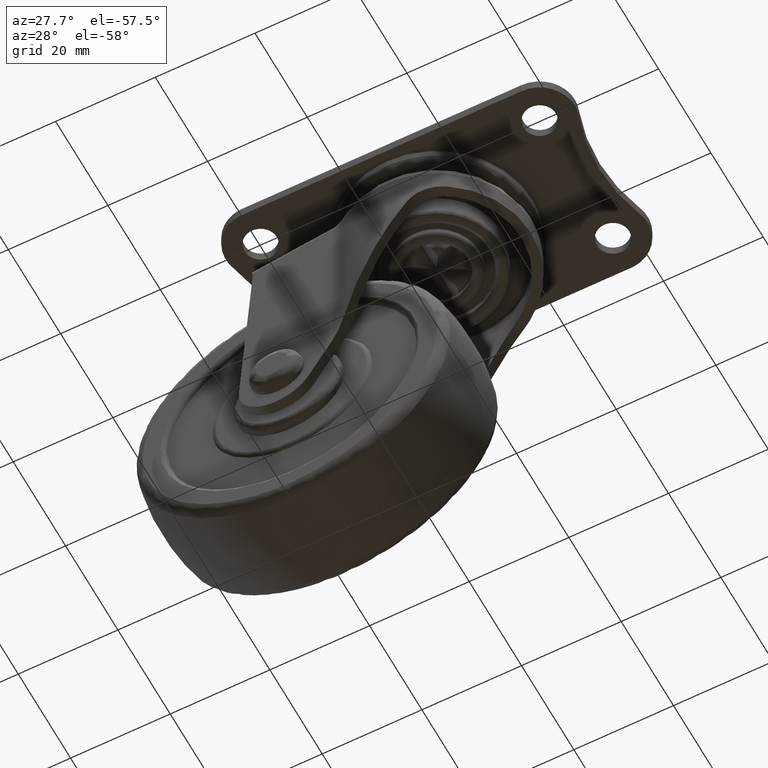
[diagram: clean part render]
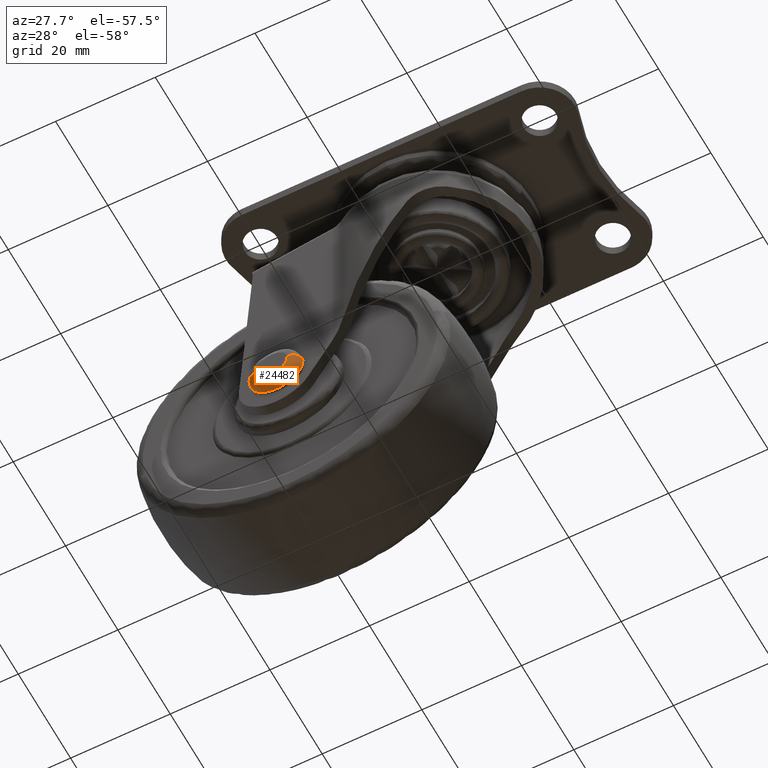
[diagram: same view with one face highlighted and labeled with its STEP entity id]
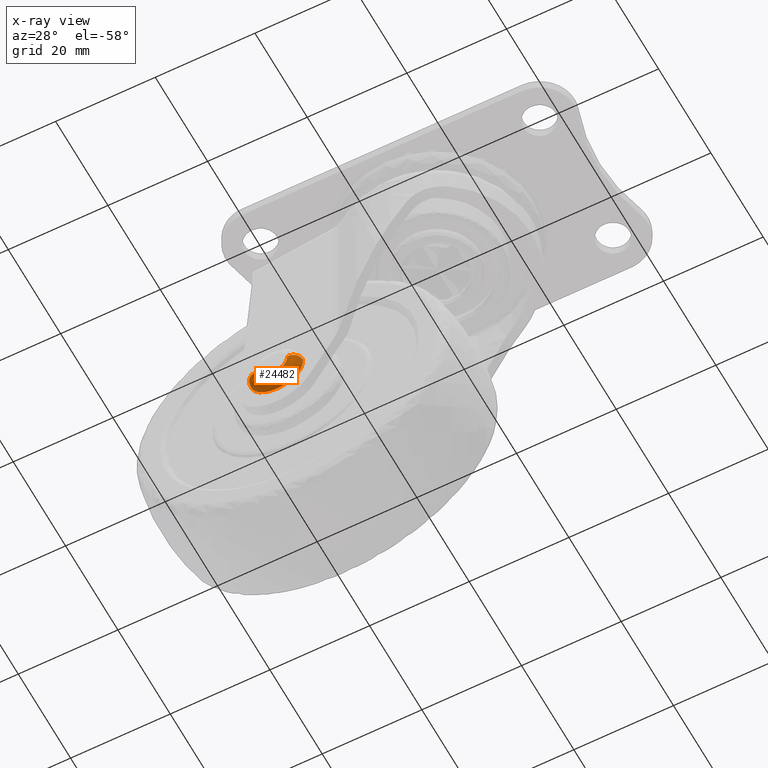
[diagram: x-ray of the same camera — body ghosted, the highlighted face saturated]
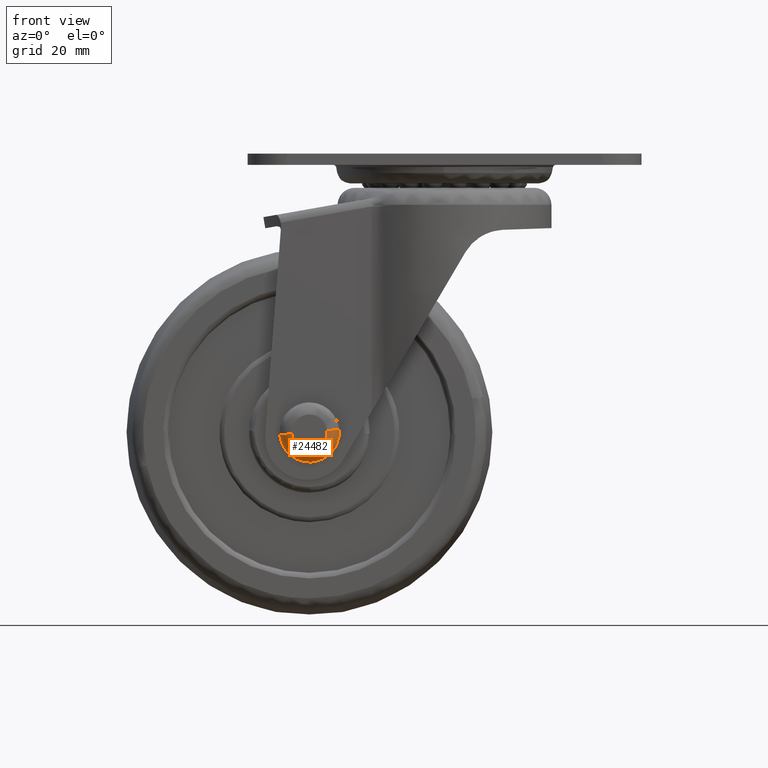
[diagram: same view with one face highlighted and labeled with its STEP entity id]
A machine part, auxiliary view. The second image highlights one B-rep face of the part: STEP entity #24482.
The next image is the same camera in x-ray: the body ghosted, the highlighted face saturated — about 0% of this face is hidden behind the body in this view.
A second angle (front view) of the same face is appended — the face is thin or edge-on in the first view.
In plain terms, the highlighted face is a freeform B-spline surface patch.
Its self-contained STEP definition (entity closure, byte-faithful):
#24238=CARTESIAN_POINT('',(-3.127044846494923,-17.494932000694799,-0.275780910159106));
#24239=VERTEX_POINT('',#24238);
#24257=CARTESIAN_POINT('',(0.0,-17.494931999999999,-3.139182143222075));
#24258=VERTEX_POINT('',#24257);
#24259=CARTESIAN_POINT('',(0.0,-17.494931999999999,-3.139182143222075));
#24260=CARTESIAN_POINT('',(-2.874515237681398,-17.494932000347401,-3.139182143600397));
#24261=CARTESIAN_POINT('',(-3.127044846494923,-17.494932000694796,-0.275780910159107));
#24269=(BOUNDED_CURVE()B_SPLINE_CURVE(2,(#24259,#24260,#24261),.UNSPECIFIED.,.F.,.U.)B_SPLINE_CURVE_WITH_KNOTS((3,3),(0.500000000000000,0.734718454750623),.UNSPECIFIED.)CURVE()GEOMETRIC_REPRESENTATION_ITEM()RATIONAL_B_SPLINE_CURVE((1.0,0.725010225092682,0.966381850493102))REPRESENTATION_ITEM(''));
#24270=EDGE_CURVE('',#24258,#24239,#24269,.T.);
#24272=CARTESIAN_POINT('',(3.127044846494923,-17.494932000694799,0.275780910159096));
#24273=VERTEX_POINT('',#24272);
#24274=CARTESIAN_POINT('',(3.127044846494923,-17.494932000694792,0.275780910159096));
#24275=CARTESIAN_POINT('',(3.139182151628698,-17.494932000680802,0.138157540971541));
#24276=CARTESIAN_POINT('',(3.139182151439903,-17.494932000665511,7.247439E-010));
#24277=CARTESIAN_POINT('',(3.139182147150150,-17.494932000318116,-3.139182142875649));
#24278=CARTESIAN_POINT('',(0.0,-17.494931999999999,-3.139182143222075));
#24286=(BOUNDED_CURVE()B_SPLINE_CURVE(2,(#24274,#24275,#24276,#24277,#24278),.UNSPECIFIED.,.F.,.U.)B_SPLINE_CURVE_WITH_KNOTS((3,2,3),(0.234718454750623,0.250000000000000,0.500000000000000),.UNSPECIFIED.)CURVE()GEOMETRIC_REPRESENTATION_ITEM()RATIONAL_B_SPLINE_CURVE((0.966381850493102,0.982096556093866,1.0,0.707106781186548,1.0))REPRESENTATION_ITEM(''));
#24287=EDGE_CURVE('',#24273,#24258,#24286,.T.);
#24330=CARTESIAN_POINT('',(5.279507132323577,-15.501408001002369,0.465611253887437));
#24331=VERTEX_POINT('',#24330);
#24332=CARTESIAN_POINT('',(3.127044846494923,-17.494932000694792,0.275780910159096));
#24333=CARTESIAN_POINT('',(5.279507131157067,-17.669244301268272,0.465611254746978));
#24334=CARTESIAN_POINT('',(5.279507132323577,-15.501408001002371,0.465611253887437));
#24342=(BOUNDED_CURVE()B_SPLINE_CURVE(2,(#24332,#24333,#24334),.UNSPECIFIED.,.F.,.U.)B_SPLINE_CURVE_WITH_KNOTS((3,3),(-1.739985651690136,-0.265128384279497),.UNSPECIFIED.)CURVE()GEOMETRIC_REPRESENTATION_ITEM()RATIONAL_B_SPLINE_CURVE((0.882019096863781,0.597414423920721,0.880052195841806))REPRESENTATION_ITEM(''));
#24343=EDGE_CURVE('',#24273,#24331,#24342,.T.);
#24375=CARTESIAN_POINT('',(-5.279507132323577,-15.501408001002360,-0.465611253887449));
#24376=VERTEX_POINT('',#24375);
#24392=CARTESIAN_POINT('',(-3.127044846494923,-17.494932000694799,-0.275780910159107));
#24393=CARTESIAN_POINT('',(-5.279507131157073,-17.669244301268268,-0.465611254746990));
#24394=CARTESIAN_POINT('',(-5.279507132323578,-15.501408001002360,-0.465611253887449));
#24402=(BOUNDED_CURVE()B_SPLINE_CURVE(2,(#24392,#24393,#24394),.UNSPECIFIED.,.F.,.U.)B_SPLINE_CURVE_WITH_KNOTS((3,3),(-1.739985651690136,-0.265128384279495),.UNSPECIFIED.)CURVE()GEOMETRIC_REPRESENTATION_ITEM()RATIONAL_B_SPLINE_CURVE((0.882019096863782,0.597414423920720,0.880052195841807))REPRESENTATION_ITEM(''));
#24403=EDGE_CURVE('',#24239,#24376,#24402,.T.);
#24408=CARTESIAN_POINT('',(2.984312110050522,-17.478153053915740,0.263192996745002));
#24409=CARTESIAN_POINT('',(3.247505106795529,-17.478153053915740,-2.721119113305519));
#24410=CARTESIAN_POINT('',(0.263192996745007,-17.478153053915740,-2.984312110050527));
#24411=CARTESIAN_POINT('',(-2.721119113305514,-17.478153053915740,-3.247505106795534));
#24412=CARTESIAN_POINT('',(-2.984312110050522,-17.478153053915740,-0.263192996745012));
#24413=CARTESIAN_POINT('',(5.454905413547632,-17.859705769744167,0.481080011007242));
#24414=CARTESIAN_POINT('',(5.935985424554879,-17.859705769744163,-4.973825402540389));
#24415=CARTESIAN_POINT('',(0.481080011007247,-17.859705769744167,-5.454905413547635));
#24416=CARTESIAN_POINT('',(-4.973825402540384,-17.859705769744163,-5.935985424554884));
#24417=CARTESIAN_POINT('',(-5.454905413547632,-17.859705769744167,-0.481080011007252));
#24418=CARTESIAN_POINT('',(5.274300162575385,-15.356904031635290,0.465152039843909));
#24419=CARTESIAN_POINT('',(5.739452202419299,-15.356904031635295,-4.809148122731476));
#24420=CARTESIAN_POINT('',(0.465152039843914,-15.356904031635290,-5.274300162575391));
#24421=CARTESIAN_POINT('',(-4.809148122731473,-15.356904031635295,-5.739452202419305));
#24422=CARTESIAN_POINT('',(-5.274300162575385,-15.356904031635290,-0.465152039843919));
#24430=(BOUNDED_SURFACE()B_SPLINE_SURFACE(2,2,((#24408,#24413,#24418),(#24409,#24414,#24419),(#24410,#24415,#24420),(#24411,#24416,#24421),(#24412,#24417,#24422)),.UNSPECIFIED.,.F.,.F.,.U.)B_SPLINE_SURFACE_WITH_KNOTS((3,2,3),(3,3),(0.0,8.772665189941778,17.545330379883559),(0.0,3.853973621719939),.UNSPECIFIED.)GEOMETRIC_REPRESENTATION_ITEM()RATIONAL_B_SPLINE_SURFACE(((0.911866398719897,0.567665377873965,0.909702986192699),(0.644786914070995,0.401400038139505,0.643257150402510),(0.911866398719897,0.567665377873965,0.909702986192699),(0.644786914070995,0.401400038139505,0.643257150402510),(0.911866398719897,0.567665377873965,0.909702986192699)))REPRESENTATION_ITEM('')SURFACE());
#24431=ORIENTED_EDGE('',*,*,#24270,.T.);
#24432=ORIENTED_EDGE('',*,*,#24403,.T.);
#24433=CARTESIAN_POINT('',(0.0,-15.501408000000000,-5.299999000000115));
#24434=VERTEX_POINT('',#24433);
#24435=CARTESIAN_POINT('',(0.0,-15.501408000000000,-5.299999000000115));
#24436=CARTESIAN_POINT('',(-4.853151928356849,-15.501408000501186,-5.299999000000113));
#24437=CARTESIAN_POINT('',(-5.279507132323577,-15.501408001002362,-0.465611253887449));
#24445=(BOUNDED_CURVE()B_SPLINE_CURVE(2,(#24435,#24436,#24437),.UNSPECIFIED.,.F.,.U.)B_SPLINE_CURVE_WITH_KNOTS((3,3),(0.500000000000000,0.734718454855405),.UNSPECIFIED.)CURVE()GEOMETRIC_REPRESENTATION_ITEM()RATIONAL_B_SPLINE_CURVE((1.0,0.725010224969921,0.966381850708607))REPRESENTATION_ITEM(''));
#24446=EDGE_CURVE('',#24434,#24376,#24445,.T.);
#24447=ORIENTED_EDGE('',*,*,#24446,.F.);
#24448=CARTESIAN_POINT('',(4.147824456593565,-15.501408000548921,-3.299324427405721));
#24449=VERTEX_POINT('',#24448);
#24450=CARTESIAN_POINT('',(4.147824456593564,-15.501408000548928,-3.299324427405721));
#24451=CARTESIAN_POINT('',(2.556418031918691,-15.501408000221646,-5.299998999999810));
#24452=CARTESIAN_POINT('',(0.0,-15.501408000000000,-5.299999000000115));
#24460=(BOUNDED_CURVE()B_SPLINE_CURVE(2,(#24450,#24451,#24452),.UNSPECIFIED.,.F.,.U.)B_SPLINE_CURVE_WITH_KNOTS((3,3),(0.357863785268594,0.500000000000000),.UNSPECIFIED.)CURVE()GEOMETRIC_REPRESENTATION_ITEM()RATIONAL_B_SPLINE_CURVE((0.856305648235803,0.833477066229433,1.0))REPRESENTATION_ITEM(''));
#24461=EDGE_CURVE('',#24449,#24434,#24460,.T.);
#24462=ORIENTED_EDGE('',*,*,#24461,.F.);
#24463=CARTESIAN_POINT('',(5.279507132323577,-15.501408001002369,0.465611253887437));
#24464=CARTESIAN_POINT('',(5.299999000000066,-15.501408000982199,0.233256557454306));
#24465=CARTESIAN_POINT('',(5.299999000000023,-15.501408000960179,6.345635E-014));
#24466=CARTESIAN_POINT('',(5.299998999999676,-15.501408000785410,-1.850840698523109));
#24467=CARTESIAN_POINT('',(4.147824456593564,-15.501408000548928,-3.299324427405721));
#24475=(BOUNDED_CURVE()B_SPLINE_CURVE(2,(#24463,#24464,#24465,#24466,#24467),.UNSPECIFIED.,.F.,.U.)B_SPLINE_CURVE_WITH_KNOTS((3,2,3),(0.234718454855405,0.250000000000000,0.357863785268594),.UNSPECIFIED.)CURVE()GEOMETRIC_REPRESENTATION_ITEM()RATIONAL_B_SPLINE_CURVE((0.966381850708608,0.982096556216627,1.0,0.873629714957114,0.856305648235803))REPRESENTATION_ITEM(''));
#24476=EDGE_CURVE('',#24331,#24449,#24475,.T.);
#24477=ORIENTED_EDGE('',*,*,#24476,.F.);
#24478=ORIENTED_EDGE('',*,*,#24343,.F.);
#24479=ORIENTED_EDGE('',*,*,#24287,.T.);
#24480=EDGE_LOOP('',(#24431,#24432,#24447,#24462,#24477,#24478,#24479));
#24481=FACE_OUTER_BOUND('',#24480,.T.);
#24482=ADVANCED_FACE('',(#24481),#24430,.T.);